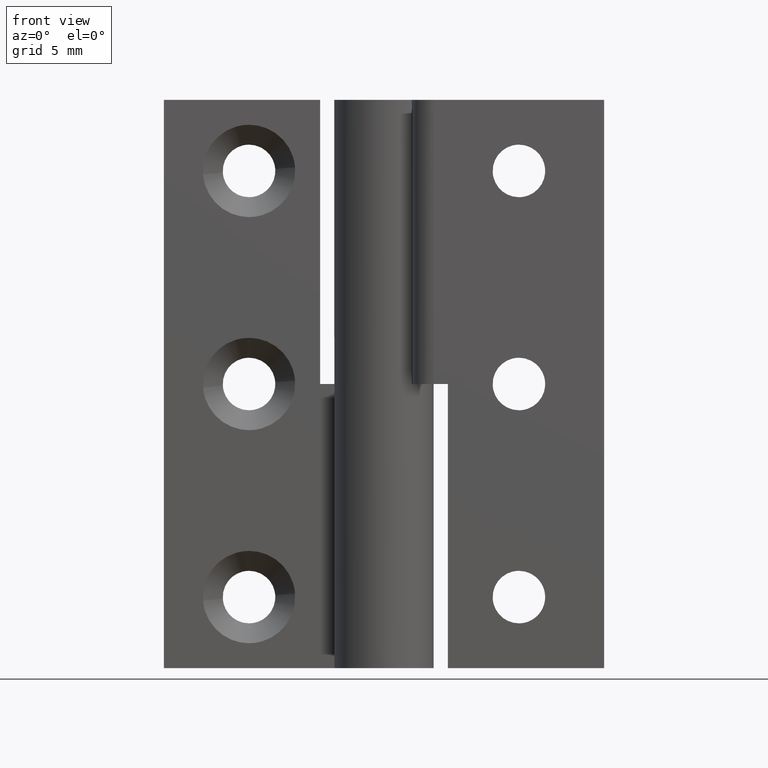
[diagram: clean part render]
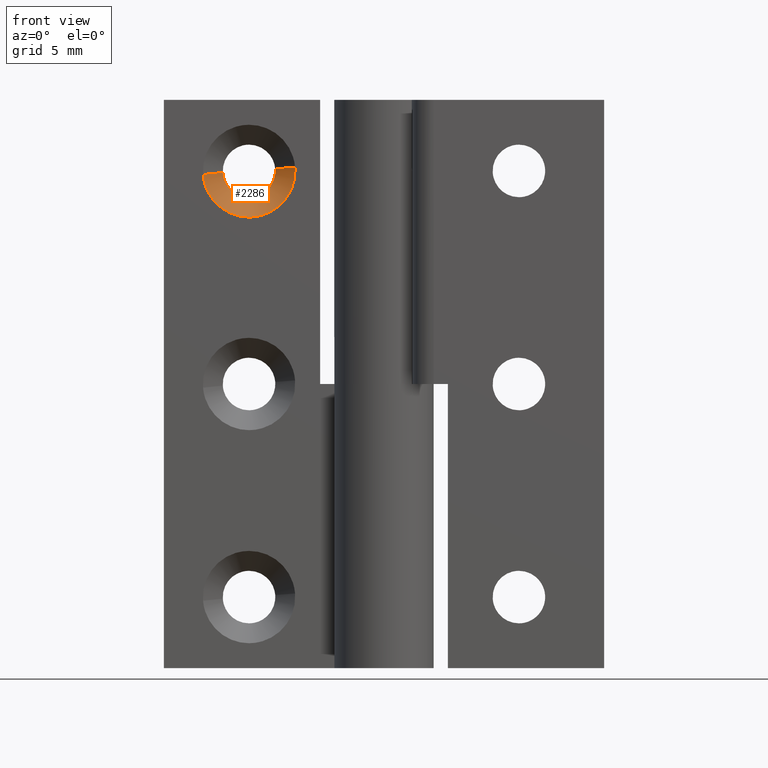
[diagram: same view with one face highlighted and labeled with its STEP entity id]
A machine part, front view. The second image highlights one B-rep face of the part: STEP entity #2286.
In plain terms, the highlighted face is a freeform B-spline surface patch.
Its self-contained STEP definition (entity closure, byte-faithful):
#1977=CARTESIAN_POINT('',(-7.662081992144891,3.400000000000000,34.788913770221953));
#1978=VERTEX_POINT('',#1977);
#1979=CARTESIAN_POINT('',(-9.500000000000000,3.400000000000000,33.150000000000013));
#1980=VERTEX_POINT('',#1979);
#1981=CARTESIAN_POINT('',(-7.662081992144891,3.400000000000000,34.788913770221946));
#1982=CARTESIAN_POINT('',(-7.850312439435152,3.400000000000001,33.149999999999999));
#1983=CARTESIAN_POINT('',(-9.500000000000000,3.400000000000000,33.150000000000013));
#1991=(BOUNDED_CURVE()B_SPLINE_CURVE(2,(#1981,#1982,#1983),.UNSPECIFIED.,.F.,.U.)B_SPLINE_CURVE_WITH_KNOTS((3,3),(0.269767755878152,0.500000000000000),.UNSPECIFIED.)CURVE()GEOMETRIC_REPRESENTATION_ITEM()RATIONAL_B_SPLINE_CURVE((0.957343736457620,0.730266147778030,1.0))REPRESENTATION_ITEM(''));
#1992=EDGE_CURVE('',#1978,#1980,#1991,.T.);
#2031=CARTESIAN_POINT('',(-11.346549386671891,3.399999999999738,34.887060358679307));
#2032=VERTEX_POINT('',#2031);
#2038=CARTESIAN_POINT('',(-9.500000000000000,3.400000000000000,33.150000000000013));
#2039=CARTESIAN_POINT('',(-11.240306371847785,3.400000000000000,33.150000000000013));
#2040=CARTESIAN_POINT('',(-11.346549386671887,3.399999999999738,34.887060358679314));
#2048=(BOUNDED_CURVE()B_SPLINE_CURVE(2,(#2038,#2039,#2040),.UNSPECIFIED.,.F.,.U.)B_SPLINE_CURVE_WITH_KNOTS((3,3),(0.500000000000000,0.739332976895560),.UNSPECIFIED.)CURVE()GEOMETRIC_REPRESENTATION_ITEM()RATIONAL_B_SPLINE_CURVE((1.0,0.719603976115416,0.976072073078639))REPRESENTATION_ITEM(''));
#2049=EDGE_CURVE('',#1980,#2032,#2048,.T.);
#2076=CARTESIAN_POINT('',(-7.655702932576058,3.399999999955385,35.145149327440834));
#2077=VERTEX_POINT('',#2076);
#2078=CARTESIAN_POINT('',(-7.655702932576058,3.399999999955385,35.145149327440834));
#2079=CARTESIAN_POINT('',(-7.650000000000000,3.400000000000000,35.072686698306583));
#2080=CARTESIAN_POINT('',(-7.650000000000000,3.400000000000000,35.0));
#2081=CARTESIAN_POINT('',(-7.650000000000000,3.400000000000000,34.894111115194754));
#2082=CARTESIAN_POINT('',(-7.662081992144891,3.400000000000000,34.788913770221946));
#2090=(BOUNDED_CURVE()B_SPLINE_CURVE(2,(#2078,#2079,#2080,#2081,#2082),.UNSPECIFIED.,.F.,.U.)B_SPLINE_CURVE_WITH_KNOTS((3,2,3),(0.236331300569411,0.250000000000000,0.269767755878152),.UNSPECIFIED.)CURVE()GEOMETRIC_REPRESENTATION_ITEM()RATIONAL_B_SPLINE_CURVE((0.969723356039596,0.983986122507124,1.0,0.976840633408517,0.957343736457620))REPRESENTATION_ITEM(''));
#2091=EDGE_CURVE('',#2077,#1978,#2090,.T.);
#2179=CARTESIAN_POINT('',(-6.260018665362887,1.999999999988912,35.254992061200312));
#2180=VERTEX_POINT('',#2179);
#2181=CARTESIAN_POINT('',(-7.655702932576058,3.399999999955385,35.145149327440834));
#2182=CARTESIAN_POINT('',(-6.260018665362887,1.999999999988912,35.254992061200312));
#2183=QUASI_UNIFORM_CURVE('',1,(#2181,#2182),.UNSPECIFIED.,.F.,.U.);
#2184=EDGE_CURVE('',#2077,#2180,#2183,.T.);
#2201=CARTESIAN_POINT('',(-12.739981334637109,1.999999999988912,34.745007938799688));
#2202=VERTEX_POINT('',#2201);
#2218=CARTESIAN_POINT('',(-11.346549386671891,3.399999999999738,34.887060358679307));
#2219=CARTESIAN_POINT('',(-12.739981334637109,1.999999999988912,34.745007938799688));
#2220=QUASI_UNIFORM_CURVE('',1,(#2218,#2219),.UNSPECIFIED.,.F.,.U.);
#2221=EDGE_CURVE('',#2032,#2202,#2220,.T.);
#2227=CARTESIAN_POINT('',(-11.313858311499452,3.435000000000001,34.914181927948221));
#2228=CARTESIAN_POINT('',(-11.311646151886480,3.434999999999999,34.886073774996767));
#2229=CARTESIAN_POINT('',(-11.167001701979586,3.435000000000000,33.048191780528335));
#2230=CARTESIAN_POINT('',(-9.357596741253961,3.435000000000001,33.190595039274378));
#2231=CARTESIAN_POINT('',(-7.548191780528335,3.435000000000000,33.332998298020428));
#2232=CARTESIAN_POINT('',(-7.691605219061367,3.435000000000002,35.155238809939910));
#2233=CARTESIAN_POINT('',(-7.692609479723586,3.434999999999999,35.167999151522579));
#2234=CARTESIAN_POINT('',(-12.783808087767644,1.964125000000000,34.844635009640122));
#2235=CARTESIAN_POINT('',(-12.779803195223149,1.964124999999999,34.793748025023440));
#2236=CARTESIAN_POINT('',(-12.517938962805607,1.964125000000000,31.466447474844923));
#2237=CARTESIAN_POINT('',(-9.242193218825266,1.964125000000000,31.724254256019659));
#2238=CARTESIAN_POINT('',(-5.966447474844926,1.964125000000000,31.982061037194399));
#2239=CARTESIAN_POINT('',(-6.226083084949460,1.964125000000000,35.281044255984185));
#2240=CARTESIAN_POINT('',(-6.227901197899032,1.964124999999999,35.304145571354979));
#2248=(BOUNDED_SURFACE()B_SPLINE_SURFACE(2,1,((#2227,#2234),(#2228,#2235),(#2229,#2236),(#2230,#2237),(#2231,#2238),(#2232,#2239),(#2233,#2240)),.UNSPECIFIED.,.F.,.F.,.U.)B_SPLINE_SURFACE_WITH_KNOTS((3,1,2,1,3),(2,2),(0.0,0.121969084638771,5.566185041689548,11.010400998740330,11.065179112658550),(0.0,2.080639897777135),.UNSPECIFIED.)GEOMETRIC_REPRESENTATION_ITEM()RATIONAL_B_SPLINE_SURFACE(((1.013123622603293,1.013123622603293),(1.006561811301647,1.006561811301647),(0.707106781186548,0.707106781186548),(1.0,1.0),(0.707106781186548,0.707106781186548),(1.002947006186494,1.002947006186494),(1.005894012372989,1.005894012372989)))REPRESENTATION_ITEM('')SURFACE());
#2249=ORIENTED_EDGE('',*,*,#2091,.T.);
#2250=ORIENTED_EDGE('',*,*,#1992,.T.);
#2251=ORIENTED_EDGE('',*,*,#2049,.T.);
#2252=ORIENTED_EDGE('',*,*,#2221,.T.);
#2253=CARTESIAN_POINT('',(-9.500000000000000,2.0,31.750000000000000));
#2254=VERTEX_POINT('',#2253);
#2255=CARTESIAN_POINT('',(-9.500000000000000,2.0,31.750000000000000));
#2256=CARTESIAN_POINT('',(-12.504269097733021,2.000000000000000,31.750000000000011));
#2257=CARTESIAN_POINT('',(-12.739981334637111,1.999999999988912,34.745007938799688));
#2265=(BOUNDED_CURVE()B_SPLINE_CURVE(2,(#2255,#2256,#2257),.UNSPECIFIED.,.F.,.U.)B_SPLINE_CURVE_WITH_KNOTS((3,3),(0.500000000000000,0.736331300623884),.UNSPECIFIED.)CURVE()GEOMETRIC_REPRESENTATION_ITEM()RATIONAL_B_SPLINE_CURVE((1.0,0.723120658615603,0.969723356153278))REPRESENTATION_ITEM(''));
#2266=EDGE_CURVE('',#2254,#2202,#2265,.T.);
#2267=ORIENTED_EDGE('',*,*,#2266,.F.);
#2268=CARTESIAN_POINT('',(-6.260018665362887,1.999999999988912,35.254992061200312));
#2269=CARTESIAN_POINT('',(-6.250000000000001,2.000000000000000,35.127692847859258));
#2270=CARTESIAN_POINT('',(-6.250000000000000,2.0,35.0));
#2271=CARTESIAN_POINT('',(-6.249999999999999,2.0,31.749999999999996));
#2272=CARTESIAN_POINT('',(-9.500000000000000,2.0,31.750000000000000));
#2280=(BOUNDED_CURVE()B_SPLINE_CURVE(2,(#2268,#2269,#2270,#2271,#2272),.UNSPECIFIED.,.F.,.U.)B_SPLINE_CURVE_WITH_KNOTS((3,2,3),(0.236331300623884,0.250000000000000,0.500000000000000),.UNSPECIFIED.)CURVE()GEOMETRIC_REPRESENTATION_ITEM()RATIONAL_B_SPLINE_CURVE((0.969723356153277,0.983986122570943,1.0,0.707106781186547,1.0))REPRESENTATION_ITEM(''));
#2281=EDGE_CURVE('',#2180,#2254,#2280,.T.);
#2282=ORIENTED_EDGE('',*,*,#2281,.F.);
#2283=ORIENTED_EDGE('',*,*,#2184,.F.);
#2284=EDGE_LOOP('',(#2249,#2250,#2251,#2252,#2267,#2282,#2283));
#2285=FACE_OUTER_BOUND('',#2284,.T.);
#2286=ADVANCED_FACE('',(#2285),#2248,.F.);